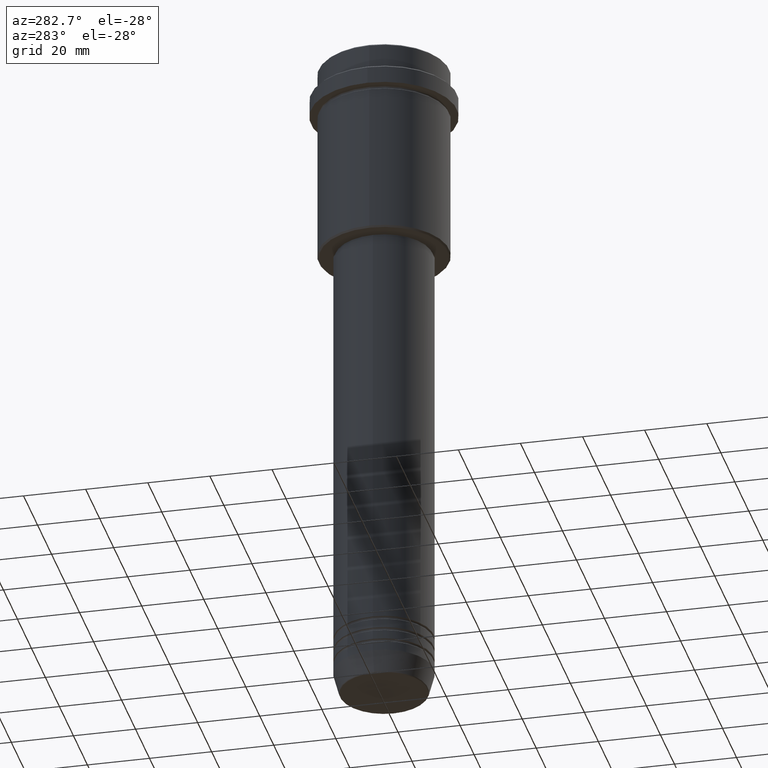
[diagram: clean part render]
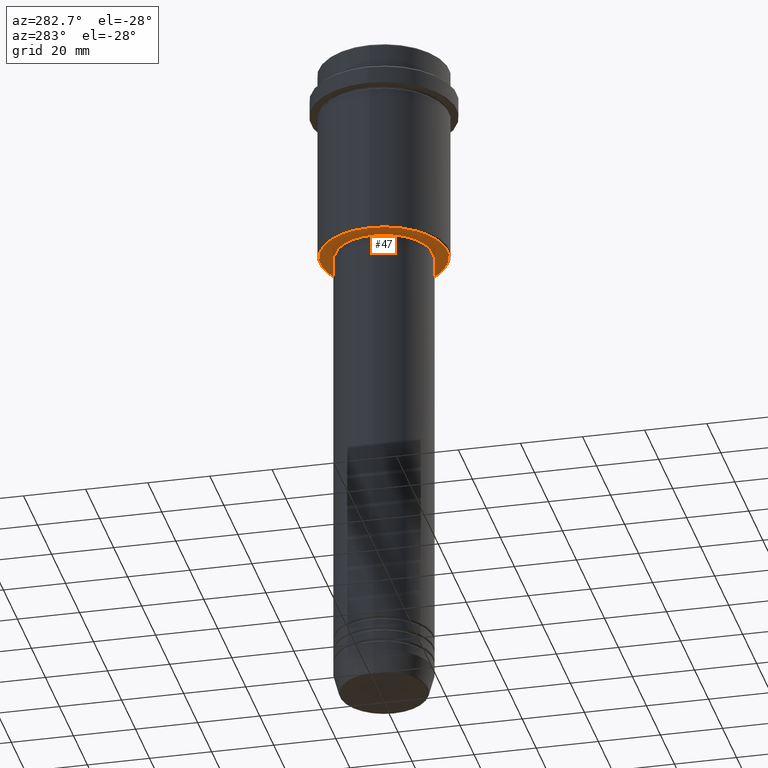
[diagram: same view with one face highlighted and labeled with its STEP entity id]
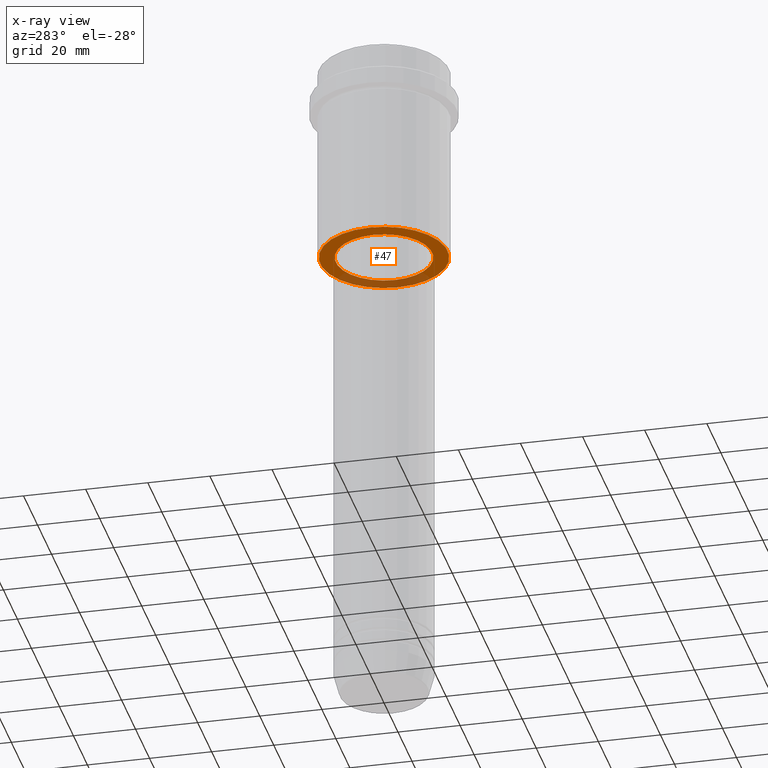
[diagram: x-ray of the same camera — body ghosted, the highlighted face saturated]
A machine part, auxiliary view. The second image highlights one B-rep face of the part: STEP entity #47.
The next image is the same camera in x-ray: the body ghosted, the highlighted face saturated — about 27% of this face is hidden behind the body in this view.
In plain terms, the highlighted planar face has unit normal (0, 0, -1).
Its self-contained STEP definition (entity closure, byte-faithful):
#47 = ADVANCED_FACE ( 'NONE', ( #992, #226 ), #144, .T. ) ;
#75 = EDGE_LOOP ( 'NONE', ( #1246, #862 ) ) ;
#88 = EDGE_CURVE ( 'NONE', #1308, #890, #562, .T. ) ;
#93 = CARTESIAN_POINT ( 'NONE',  ( -15.50000000000000000, 1.898202538678397557E-15, -65.00000000000000000 ) ) ;
#100 = CARTESIAN_POINT ( 'NONE',  ( 0.000000000000000000, 0.000000000000000000, -65.00000000000000000 ) ) ;
#117 = EDGE_CURVE ( 'NONE', #890, #1308, #332, .T. ) ;
#144 = PLANE ( 'NONE',  #356 ) ;
#226 = FACE_BOUND ( 'NONE', #558, .T. ) ;
#231 = DIRECTION ( 'NONE',  ( 1.000000000000000000, 0.000000000000000000, 0.000000000000000000 ) ) ;
#285 = CARTESIAN_POINT ( 'NONE',  ( 0.000000000000000000, 0.000000000000000000, -65.00000000000000000 ) ) ;
#332 = CIRCLE ( 'NONE', #1319, 20.50000000000004619 ) ;
#350 = DIRECTION ( 'NONE',  ( 0.000000000000000000, 0.000000000000000000, -1.000000000000000000 ) ) ;
#356 = AXIS2_PLACEMENT_3D ( 'NONE', #572, #350, #581 ) ;
#389 = DIRECTION ( 'NONE',  ( 0.000000000000000000, 0.000000000000000000, -1.000000000000000000 ) ) ;
#408 = CARTESIAN_POINT ( 'NONE',  ( -20.50000000000004619, 2.541142108230760635E-15, -65.00000000000000000 ) ) ;
#501 = AXIS2_PLACEMENT_3D ( 'NONE', #100, #669, #231 ) ;
#529 = EDGE_CURVE ( 'NONE', #1280, #934, #635, .T. ) ;
#558 = EDGE_LOOP ( 'NONE', ( #968, #1337 ) ) ;
#562 = CIRCLE ( 'NONE', #1389, 20.50000000000004619 ) ;
#572 = CARTESIAN_POINT ( 'NONE',  ( 0.000000000000000000, 21.00000000000000000, -65.00000000000000000 ) ) ;
#581 = DIRECTION ( 'NONE',  ( -1.000000000000000000, 0.000000000000000000, -0.000000000000000000 ) ) ;
#584 = DIRECTION ( 'NONE',  ( -0.000000000000000000, -0.000000000000000000, 1.000000000000000000 ) ) ;
#623 = CARTESIAN_POINT ( 'NONE',  ( 15.50000000000000000, 0.000000000000000000, -65.00000000000000000 ) ) ;
#635 = CIRCLE ( 'NONE', #1359, 15.50000000000000000 ) ;
#669 = DIRECTION ( 'NONE',  ( -0.000000000000000000, -0.000000000000000000, 1.000000000000000000 ) ) ;
#689 = DIRECTION ( 'NONE',  ( 1.000000000000000000, 0.000000000000000000, 0.000000000000000000 ) ) ;
#728 = DIRECTION ( 'NONE',  ( 0.000000000000000000, 0.000000000000000000, -1.000000000000000000 ) ) ;
#809 = CIRCLE ( 'NONE', #501, 15.50000000000000000 ) ;
#844 = DIRECTION ( 'NONE',  ( -1.000000000000000000, 0.000000000000000000, 0.000000000000000000 ) ) ;
#853 = CARTESIAN_POINT ( 'NONE',  ( 20.50000000000004619, 0.000000000000000000, -65.00000000000000000 ) ) ;
#862 = ORIENTED_EDGE ( 'NONE', *, *, #117, .T. ) ;
#890 = VERTEX_POINT ( 'NONE', #408 ) ;
#934 = VERTEX_POINT ( 'NONE', #623 ) ;
#968 = ORIENTED_EDGE ( 'NONE', *, *, #1332, .T. ) ;
#992 = FACE_OUTER_BOUND ( 'NONE', #75, .T. ) ;
#1166 = DIRECTION ( 'NONE',  ( -1.000000000000000000, 0.000000000000000000, 0.000000000000000000 ) ) ;
#1185 = CARTESIAN_POINT ( 'NONE',  ( 0.000000000000000000, 0.000000000000000000, -65.00000000000000000 ) ) ;
#1246 = ORIENTED_EDGE ( 'NONE', *, *, #88, .T. ) ;
#1280 = VERTEX_POINT ( 'NONE', #93 ) ;
#1283 = CARTESIAN_POINT ( 'NONE',  ( 0.000000000000000000, 0.000000000000000000, -65.00000000000000000 ) ) ;
#1308 = VERTEX_POINT ( 'NONE', #853 ) ;
#1319 = AXIS2_PLACEMENT_3D ( 'NONE', #285, #728, #1166 ) ;
#1332 = EDGE_CURVE ( 'NONE', #934, #1280, #809, .T. ) ;
#1337 = ORIENTED_EDGE ( 'NONE', *, *, #529, .T. ) ;
#1359 = AXIS2_PLACEMENT_3D ( 'NONE', #1185, #584, #689 ) ;
#1389 = AXIS2_PLACEMENT_3D ( 'NONE', #1283, #389, #844 ) ;